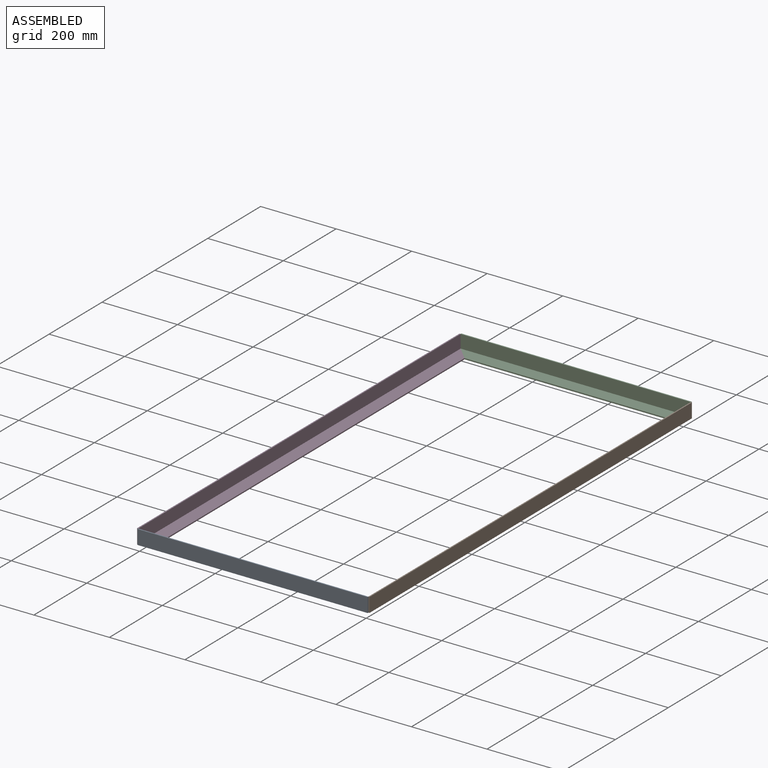
[diagram: assembled view]
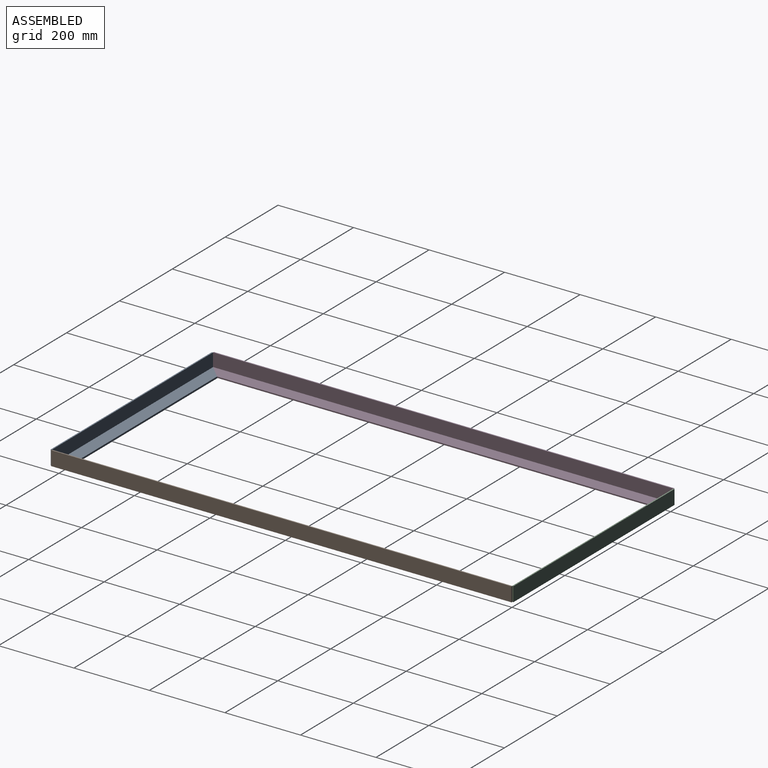
[diagram: assembled view, second angle]
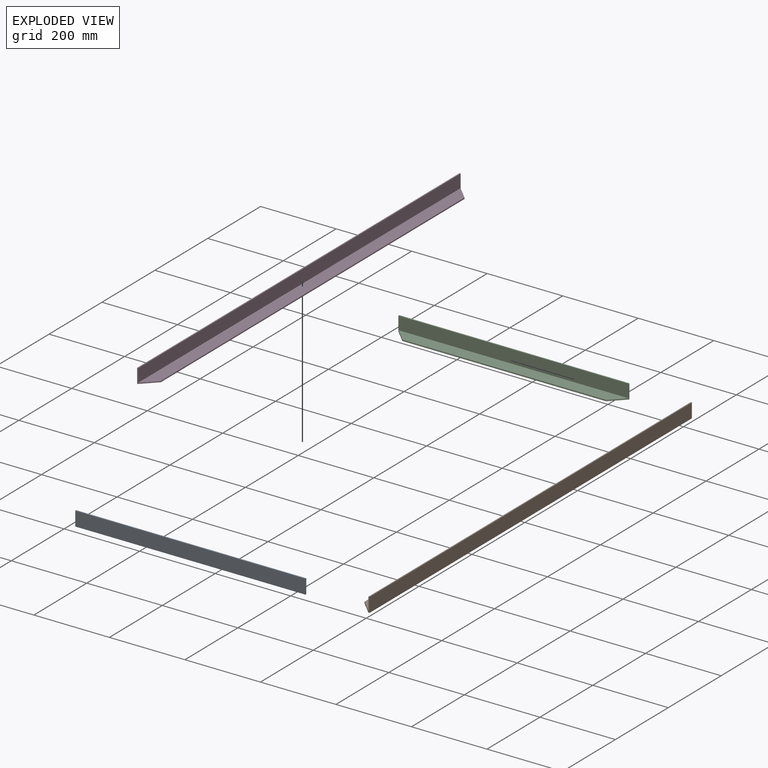
[diagram: exploded view]
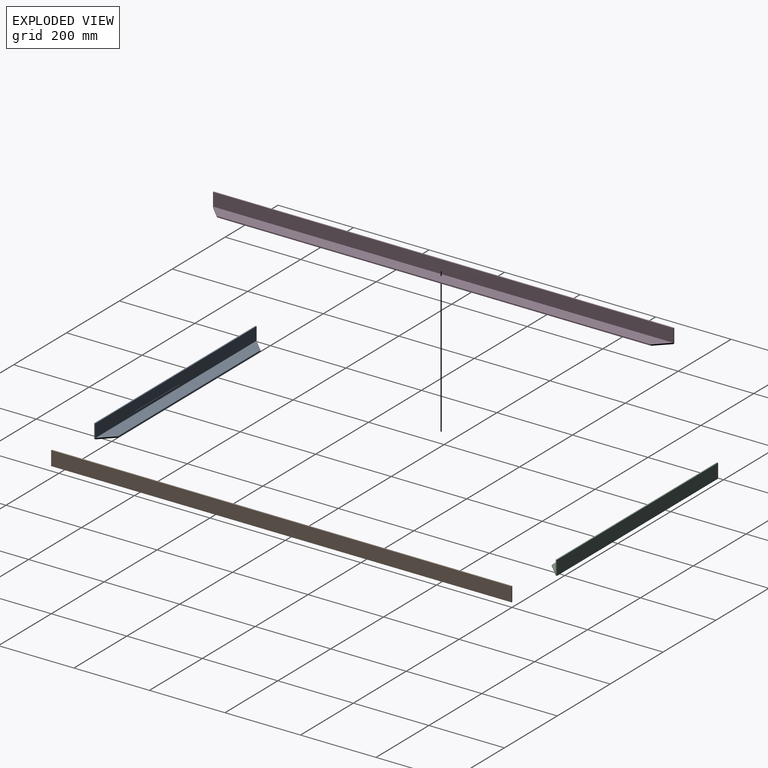
[diagram: exploded view, second angle]
ASSEMBLY  parts=4 mates=3
PART A: 10 faces, bbox 609.6x38.1x38.1 mm
  f0: plane 609.6x38.1mm, normal (0,0,-1), area 21997.1mm2, adj f1,f5,f6,f7,f8,f9
  f1: plane 539.5x3.18mm, normal (0,1,0), area 1712.9mm2, adj f0,f3,f8,f9
  f2: plane 609.6x3.18mm, normal (0,0,1), area 1935.5mm2, adj f4,f5,f6,f7,f8,f9
  f3: plane 609.35x34.93mm, normal (0,0,1), area 20061.7mm2, adj f1,f4,f8,f9
  f4: plane 609.35x34.93mm, normal (0,1,0), area 21281.4mm2, adj f2,f3,f8,f9
  f5: plane 609.6x38.1mm, normal (0,-1,0), area 23225.8mm2, adj f0,f2,f6,f7
  f6: plane 38.1x3.05mm, normal (1,0,0), area 116.1mm2, adj f0,f2,f5,f9
  f7: plane 38.1x3.05mm, normal (-1,0,0), area 116.1mm2, adj f0,f2,f5,f8
  f8: plane 38.1x35.05mm, normal (-0.71,0.71,0), area 163.7mm2, adj f0,f1,f2,f3,f4,f7
  f9: plane 38.1x35.05mm, normal (0.71,0.71,0), area 163.7mm2, adj f0,f1,f2,f3,f4,f6
PART B: 10 faces, bbox 38.1x1219.2x38.1 mm
  f0: plane 1149.1x3.18mm, normal (1,0,0), area 3648.4mm2, adj f1,f2,f8,f9
  f1: plane 1219.2x38.1mm, normal (0,0,-1), area 45222.9mm2, adj f0,f5,f6,f7,f8,f9
  f2: plane 1218.95x34.93mm, normal (0,0,1), area 41351.9mm2, adj f0,f3,f8,f9
  f3: plane 1218.95x34.93mm, normal (1,0,0), area 42571.7mm2, adj f2,f4,f8,f9
  f4: plane 1219.2x3.18mm, normal (0,0,1), area 3870.9mm2, adj f3,f5,f6,f7,f8,f9
  f5: plane 1219.2x38.1mm, normal (-1,0,0), area 46451.5mm2, adj f1,f4,f6,f7
  f6: plane 38.1x3.05mm, normal (0,-1,0), area 116.1mm2, adj f1,f4,f5,f9
  f7: plane 38.1x3.05mm, normal (0,1,0), area 116.1mm2, adj f1,f4,f5,f8
  f8: plane 38.1x35.05mm, normal (0.71,0.71,0), area 163.7mm2, adj f0,f1,f2,f3,f4,f7
  f9: plane 38.1x35.05mm, normal (0.71,-0.71,0), area 163.7mm2, adj f0,f1,f2,f3,f4,f6
PART C: same geometry as A
PART D: same geometry as B
PLACE A t=(307.85,-612.65,0)mm
PLACE B rot(axis=(0,0,-1),180deg) t=(615.7,0,0)mm
PLACE C rot(axis=(0,0,1),180deg) t=(307.85,612.65,0)mm
PLACE D at identity fixed
MATE fastened C.f0 <-> B.f1  axis (0,0,1) through (577.6,574.55,0)mm
MATE fastened D.f1 <-> A.f0  axis (0,0,1) through (38.1,-574.55,0)mm
MATE fastened C.f3 <-> D.f2  axis (0,0,1) through (38.1,574.55,3.17)mm
